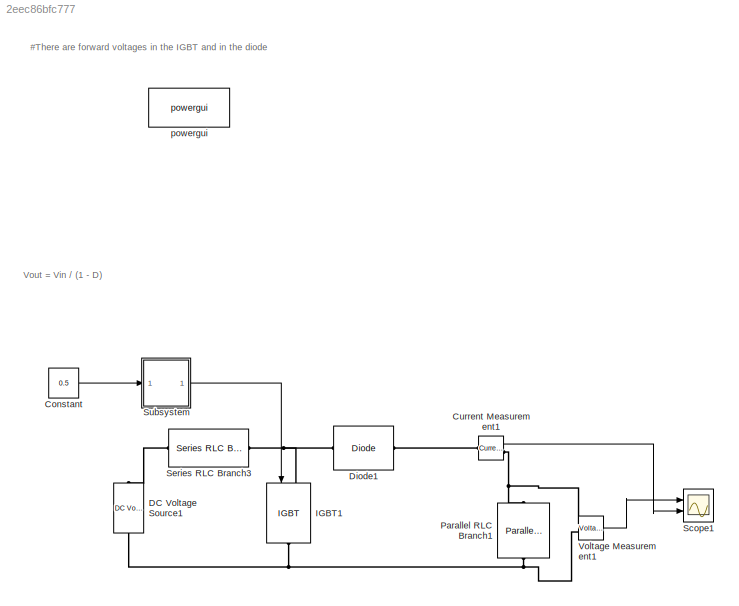
MODEL slx_2eec86bfc777
KIND model
CONFIG AbsTol = auto
CONFIG EnableMultiTasking = off
CONFIG FixedStep = auto
CONFIG MaxStep = auto
CONFIG MinStep = auto
CONFIG RelTol = 1e-3
CONFIG SampleTimeConstraint = Unconstrained
CONFIG SolverName = VariableStepAuto
CONFIG StartTime = 0.0
CONFIG StopTime = 0.5
BLOCK [Constant] Constant
  Value = 0.5
BLOCK [Reference] Current Measurement1  REF=spsCurrentMeasurementLib/Current Measurement
  Ports = [0, 1, 0, 0, 0, 1, 1]
  SourceBlock = spsCurrentMeasurementLib/Current Measurement
  SourceProductBaseCode = PS
  SourceType = Current Measurement
  UserDataPersistent = on
BLOCK [Reference] DC Voltage Source1  REF=spsDCVoltageSourceLib/DC Voltage Source
  Ports = [0, 0, 0, 0, 0, 1, 1]
  SourceBlock = spsDCVoltageSourceLib/DC Voltage Source
  SourceProductBaseCode = PS
  SourceType = DC Voltage Source
BLOCK [Reference] Diode1  REF=spsDiodeLib/Diode
  Ports = [0, 0, 0, 0, 0, 1, 1]
  SourceBlock = spsDiodeLib/Diode
  SourceProductBaseCode = PS
  SourceType = Diode
BLOCK [Reference] IGBT1  REF=spsIGBTLib/IGBT
  NameLocation = right
  Ports = [1, 0, 0, 0, 0, 1, 1]
  SourceBlock = spsIGBTLib/IGBT
  SourceProductBaseCode = PS
  SourceType = IGBT
BLOCK [Reference] Parallel RLC Branch1  REF=spsParallelRLCBranchLib/Parallel RLC Branch
  AttributesFormatString = \n
  NameLocation = left
  Ports = [0, 0, 0, 0, 0, 1, 1]
  SourceBlock = spsParallelRLCBranchLib/Parallel RLC Branch
  SourceProductBaseCode = PS
  SourceType = Parallel RLC Branch
BLOCK [Scope] Scope1
  Floating = off
  NumInputPorts = 2
  Ports = [2]
  ScopeSpecificationString = Simulink.scopes.TimeScopeBlockCfg('CurrentConfiguration', extmgr.ConfigurationSet(extmgr.Configuration('Core','General UI',true),extmgr.Configuration('Core','Source UI',true),extmgr.Configuration('Sources','WiredSimulink',true,'DataLoggingVariableName','ScopeData1'),extmgr.Configuration('Visuals','Time Domain',true,'SerializedDisplays',{struct('MinYLimReal','-4.35888','MaxYLimReal','39.22999','YLa...<+2151ch>
BLOCK [Reference] Series RLC Branch3  REF=spsSeriesRLCBranchLib/Series RLC Branch
  Ports = [0, 0, 0, 0, 0, 1, 1]
  SourceBlock = spsSeriesRLCBranchLib/Series RLC Branch
  SourceProductBaseCode = PS
  SourceType = Series RLC Branch
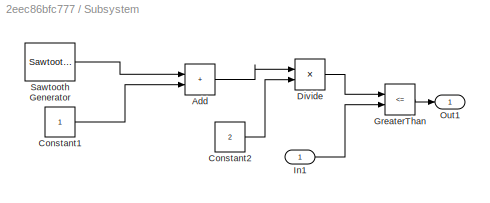
BLOCK [SubSystem] Subsystem
  Ports = [1, 1]
  RequestExecContextInheritance = off
BLOCK [Sum] Subsystem/Add
  IconShape = rectangular
  Ports = [2, 1]
BLOCK [Constant] Subsystem/Constant1
BLOCK [Constant] Subsystem/Constant2
  Value = 2
BLOCK [Product] Subsystem/Divide
  Inputs = */
  Ports = [2, 1]
BLOCK [RelationalOperator] Subsystem/GreaterThan
  InputSameDT = off
  Operator = <=
  OutDataTypeStr = boolean
  Ports = [2, 1]
  RndMeth = Simplest
BLOCK [Inport] Subsystem/In1
BLOCK [Outport] Subsystem/Out1
BLOCK [Reference] Subsystem/Sawtooth Generator  REF=spsSawtoothGeneratorLib/Sawtooth
Generator
  Ports = [0, 1]
  SourceBlock = spsSawtoothGeneratorLib/Sawtooth\nGenerator
  SourceProductBaseCode = PS
  SourceType = Sawtooth Generator
BLOCK [Reference] Voltage Measurement1  REF=spsVoltageMeasurementLib/Voltage Measurement
  Ports = [0, 1, 0, 0, 0, 2]
  SourceBlock = spsVoltageMeasurementLib/Voltage Measurement
  SourceProductBaseCode = PS
  SourceType = Voltage Measurement
  UserDataPersistent = on
BLOCK [Reference] powergui  REF=spspowerguiLib/powergui
  Ports = []
  Priority = 1
  SourceBlock = spspowerguiLib/powergui
  SourceProductBaseCode = PS
  SourceType = PSB option menu block
ANNOTATION (root): #There are forward voltages in the IGBT and in the diode
ANNOTATION (root): Vout = Vin / (1 - D)
LINE Constant:1 -> Subsystem:1
LINE Current Measurement1:1 -> Scope1:2
LINE Subsystem/Add:1 -> Subsystem/Divide:1
LINE Subsystem/Constant1:1 -> Subsystem/Add:2
LINE Subsystem/Constant2:1 -> Subsystem/Divide:2
LINE Subsystem/Divide:1 -> Subsystem/GreaterThan:1
LINE Subsystem/GreaterThan:1 -> Subsystem/Out1:1
LINE Subsystem/In1:1 -> Subsystem/GreaterThan:2
LINE Subsystem/Sawtooth Generator:1 -> Subsystem/Add:1
LINE Subsystem:1 -> IGBT1:1
LINE Voltage Measurement1:1 -> Scope1:1
PLINE Current Measurement1:LConn1 -- Diode1:RConn1
PNET net1: Current Measurement1:RConn1 -- Parallel RLC Branch1:LConn1 -- Voltage Measurement1:LConn1
PNET net2: DC Voltage Source1:LConn1 -- IGBT1:RConn1 -- Parallel RLC Branch1:RConn1 -- Voltage Measurement1:LConn2
PLINE DC Voltage Source1:RConn1 -- Series RLC Branch3:LConn1
PNET net3: Diode1:LConn1 -- IGBT1:LConn1 -- Series RLC Branch3:RConn1
note: PNET lines group multi-terminal physical nets as a canonical sorted terminal list (undirected conserving connections); 2-terminal nets keep the pairwise PLINE form
